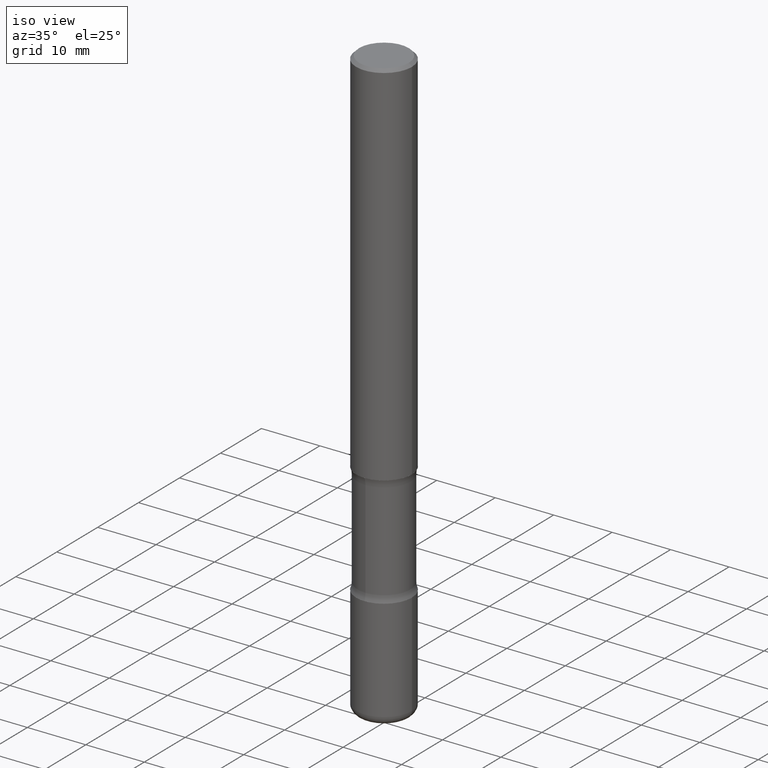
[diagram: clean part render]
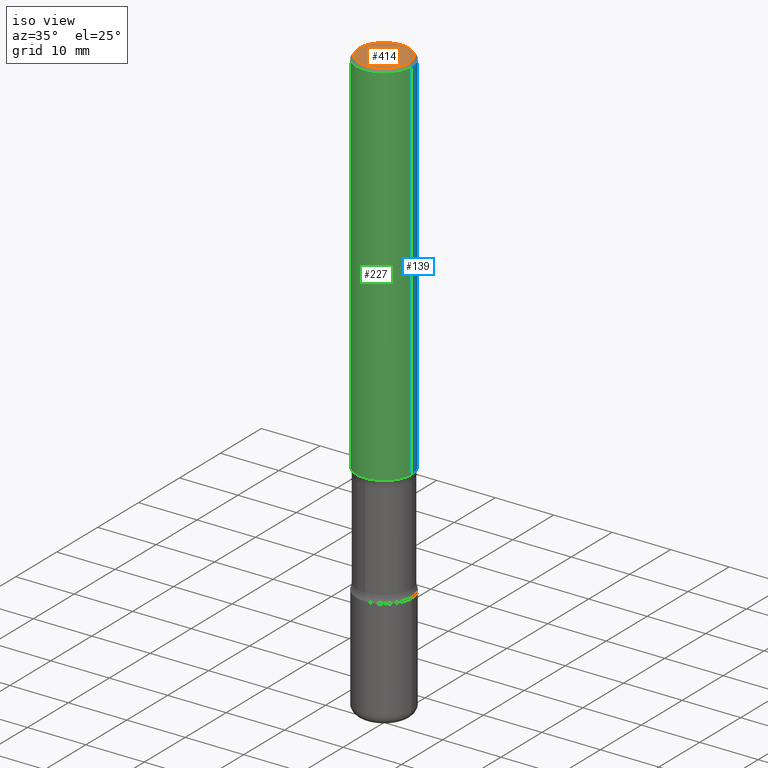
[diagram: same view with three faces highlighted in distinct colors, each labeled with its STEP entity id]
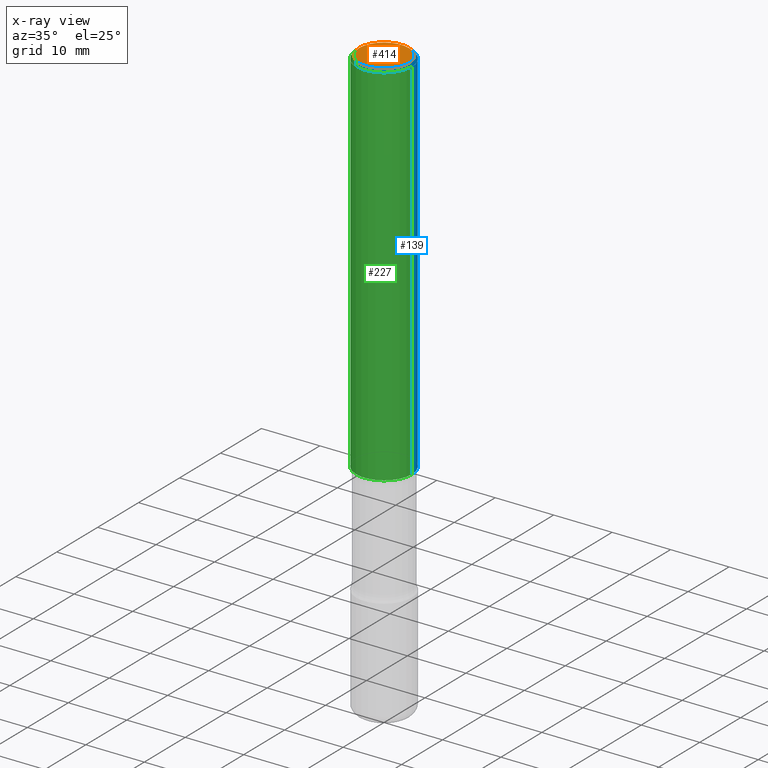
[diagram: x-ray of the same camera — body ghosted, the three highlighted faces saturated]
A machine part, iso view with three faces highlighted in distinct colors.
The next image is the same camera in x-ray (body ghosted, the three faces saturated) — at least one of them is partly hidden behind the body in this view.
Their STEP definitions:

[orange] entity #414 — the highlighted planar face has unit normal (0, -0, -1).
#23 = AXIS2_PLACEMENT_3D ( 'NONE', #41, #170, #127 ) ;
#41 = CARTESIAN_POINT ( 'NONE',  ( 0.000000000000000000, 0.000000000000000000, 0.000000000000000000 ) ) ;
#66 = DIRECTION ( 'NONE',  ( 2.438088387897960049E-29, -3.491481338843145188E-15, -1.000000000000000000 ) ) ;
#127 = DIRECTION ( 'NONE',  ( 1.000000000000000000, -6.982962677686265922E-15, 4.876176775795935793E-29 ) ) ;
#129 = CIRCLE ( 'NONE', #486, 0.1674999999999998990 ) ;
#157 = VERTEX_POINT ( 'NONE', #163 ) ;
#163 = CARTESIAN_POINT ( 'NONE',  ( -0.1674999999999998990, 1.204561061900880061E-15, -8.301862719484106184E-30 ) ) ;
#164 = FACE_OUTER_BOUND ( 'NONE', #508, .T. ) ;
#170 = DIRECTION ( 'NONE',  ( -2.445468806185136597E-29, 3.491481338843145583E-15, 1.000000000000000000 ) ) ;
#230 = ORIENTED_EDGE ( 'NONE', *, *, #539, .T. ) ;
#244 = PLANE ( 'NONE',  #422 ) ;
#253 = DIRECTION ( 'NONE',  ( 1.000000000000000000, -6.982962677686265922E-15, 4.876176775795935793E-29 ) ) ;
#292 = DIRECTION ( 'NONE',  ( -1.000000000000000000, 6.982962677686265922E-15, -4.876176775795935793E-29 ) ) ;
#309 = CIRCLE ( 'NONE', #23, 0.1674999999999998990 ) ;
#316 = VERTEX_POINT ( 'NONE', #366 ) ;
#366 = CARTESIAN_POINT ( 'NONE',  ( 0.1674999999999998990, -1.252653207992877500E-15, 8.469775550109235181E-30 ) ) ;
#403 = ORIENTED_EDGE ( 'NONE', *, *, #425, .T. ) ;
#409 = CARTESIAN_POINT ( 'NONE',  ( 0.000000000000000000, 0.000000000000000000, 0.000000000000000000 ) ) ;
#414 = ADVANCED_FACE ( 'NONE', ( #164 ), #244, .F. ) ;
#422 = AXIS2_PLACEMENT_3D ( 'NONE', #446, #66, #292 ) ;
#425 = EDGE_CURVE ( 'NONE', #157, #316, #129, .T. ) ;
#446 = CARTESIAN_POINT ( 'NONE',  ( 1.169646248512448806E-15, 0.1674999999999998990, -5.848231242562264739E-16 ) ) ;
#486 = AXIS2_PLACEMENT_3D ( 'NONE', #409, #501, #253 ) ;
#501 = DIRECTION ( 'NONE',  ( -2.445468806185136597E-29, 3.491481338843145583E-15, 1.000000000000000000 ) ) ;
#508 = EDGE_LOOP ( 'NONE', ( #403, #230 ) ) ;
#539 = EDGE_CURVE ( 'NONE', #316, #157, #309, .T. ) ;

[blue] entity #139 — the highlighted cylindrical surface (edge-blend (fillet) strip) has radius 4.7625 mm, axis along (-0, 0, 1).
#15 = DIRECTION ( 'NONE',  ( -2.445468806185136597E-29, 3.491481338843145583E-15, 1.000000000000000000 ) ) ;
#18 = EDGE_LOOP ( 'NONE', ( #339, #273, #377, #417 ) ) ;
#40 = CIRCLE ( 'NONE', #470, 0.1875000000000001110 ) ;
#53 = DIRECTION ( 'NONE',  ( 1.000000000000000000, -6.982962677686265922E-15, 0.000000000000000000 ) ) ;
#64 = EDGE_CURVE ( 'NONE', #432, #272, #40, .T. ) ;
#65 = CARTESIAN_POINT ( 'NONE',  ( 0.1874999999999999167, -1.356173001359024677E-15, -0.02000000000000006981 ) ) ;
#93 = DIRECTION ( 'NONE',  ( -2.445468806185136597E-29, 3.491481338843145583E-15, 1.000000000000000000 ) ) ;
#107 = EDGE_CURVE ( 'NONE', #304, #234, #184, .T. ) ;
#117 = CYLINDRICAL_SURFACE ( 'NONE', #194, 0.1875000000000000278 ) ;
#123 = EDGE_CURVE ( 'NONE', #272, #234, #146, .T. ) ;
#135 = DIRECTION ( 'NONE',  ( -2.445468806185136597E-29, 3.491481338843145583E-15, 1.000000000000000000 ) ) ;
#139 = ADVANCED_FACE ( 'NONE', ( #252 ), #117, .T. ) ;
#146 = LINE ( 'NONE', #154, #281 ) ;
#154 = CARTESIAN_POINT ( 'NONE',  ( -0.1875000000000000278, 1.332267629550188046E-15, -9.223003294227947991E-30 ) ) ;
#180 = EDGE_CURVE ( 'NONE', #432, #304, #458, .T. ) ;
#184 = CIRCLE ( 'NONE', #505, 0.1874999999999999167 ) ;
#194 = AXIS2_PLACEMENT_3D ( 'NONE', #206, #15, #415 ) ;
#206 = CARTESIAN_POINT ( 'NONE',  ( 0.000000000000000000, 0.000000000000000000, 0.000000000000000000 ) ) ;
#222 = VECTOR ( 'NONE', #370, 39.37007874015748143 ) ;
#234 = VERTEX_POINT ( 'NONE', #408 ) ;
#235 = CARTESIAN_POINT ( 'NONE',  ( -0.1875000000000000833, -3.066998857392172722E-15, -2.500000000000000000 ) ) ;
#243 = DIRECTION ( 'NONE',  ( -2.445468806185136877E-29, 3.491481338843145188E-15, 1.000000000000000000 ) ) ;
#252 = FACE_OUTER_BOUND ( 'NONE', #18, .T. ) ;
#272 = VERTEX_POINT ( 'NONE', #235 ) ;
#273 = ORIENTED_EDGE ( 'NONE', *, *, #123, .T. ) ;
#281 = VECTOR ( 'NONE', #243, 39.37007874015748143 ) ;
#304 = VERTEX_POINT ( 'NONE', #65 ) ;
#319 = CARTESIAN_POINT ( 'NONE',  ( 4.890937612370289799E-31, -6.982962677686315028E-17, -0.02000000000000006981 ) ) ;
#339 = ORIENTED_EDGE ( 'NONE', *, *, #64, .T. ) ;
#370 = DIRECTION ( 'NONE',  ( -2.445468806185136877E-29, 3.491481338843145188E-15, 1.000000000000000000 ) ) ;
#377 = ORIENTED_EDGE ( 'NONE', *, *, #107, .F. ) ;
#402 = CARTESIAN_POINT ( 'NONE',  ( 0.1875000000000000278, -1.309305502066175008E-15, 9.142831454617381013E-30 ) ) ;
#408 = CARTESIAN_POINT ( 'NONE',  ( -0.1874999999999999167, 1.239475875289311118E-15, -0.02000000000000006981 ) ) ;
#415 = DIRECTION ( 'NONE',  ( 1.000000000000000000, -6.982962677686265922E-15, 4.876176775795935793E-29 ) ) ;
#417 = ORIENTED_EDGE ( 'NONE', *, *, #180, .F. ) ;
#432 = VERTEX_POINT ( 'NONE', #459 ) ;
#435 = DIRECTION ( 'NONE',  ( 1.000000000000000000, -6.982962677686263555E-15, 0.000000000000000000 ) ) ;
#458 = LINE ( 'NONE', #402, #222 ) ;
#459 = CARTESIAN_POINT ( 'NONE',  ( 0.1875000000000001110, -1.003800884917403995E-14, -2.500000000000000000 ) ) ;
#470 = AXIS2_PLACEMENT_3D ( 'NONE', #559, #135, #435 ) ;
#505 = AXIS2_PLACEMENT_3D ( 'NONE', #319, #93, #53 ) ;
#559 = CARTESIAN_POINT ( 'NONE',  ( 6.113672015462842613E-29, -8.728703347107864943E-15, -2.500000000000000000 ) ) ;

[green] entity #227 — the highlighted cylindrical surface (edge-blend (fillet) strip) has radius 4.7625 mm, axis along (-0, 0, 1).
#5 = ORIENTED_EDGE ( 'NONE', *, *, #162, .T. ) ;
#44 = DIRECTION ( 'NONE',  ( 1.000000000000000000, -6.982962677686265922E-15, 0.000000000000000000 ) ) ;
#51 = DIRECTION ( 'NONE',  ( -2.445468806185136597E-29, 3.491481338843145583E-15, 1.000000000000000000 ) ) ;
#65 = CARTESIAN_POINT ( 'NONE',  ( 0.1874999999999999167, -1.356173001359024677E-15, -0.02000000000000006981 ) ) ;
#69 = EDGE_CURVE ( 'NONE', #234, #304, #325, .T. ) ;
#102 = CARTESIAN_POINT ( 'NONE',  ( 4.890937612370289799E-31, -6.982962677686315028E-17, -0.02000000000000006981 ) ) ;
#110 = FACE_OUTER_BOUND ( 'NONE', #520, .T. ) ;
#115 = DIRECTION ( 'NONE',  ( 1.000000000000000000, -6.982962677686265922E-15, 4.876176775795935793E-29 ) ) ;
#123 = EDGE_CURVE ( 'NONE', #272, #234, #146, .T. ) ;
#146 = LINE ( 'NONE', #154, #281 ) ;
#154 = CARTESIAN_POINT ( 'NONE',  ( -0.1875000000000000278, 1.332267629550188046E-15, -9.223003294227947991E-30 ) ) ;
#162 = EDGE_CURVE ( 'NONE', #272, #432, #440, .T. ) ;
#180 = EDGE_CURVE ( 'NONE', #432, #304, #458, .T. ) ;
#222 = VECTOR ( 'NONE', #370, 39.37007874015748143 ) ;
#227 = ADVANCED_FACE ( 'NONE', ( #110 ), #286, .T. ) ;
#234 = VERTEX_POINT ( 'NONE', #408 ) ;
#235 = CARTESIAN_POINT ( 'NONE',  ( -0.1875000000000000833, -3.066998857392172722E-15, -2.500000000000000000 ) ) ;
#243 = DIRECTION ( 'NONE',  ( -2.445468806185136877E-29, 3.491481338843145188E-15, 1.000000000000000000 ) ) ;
#254 = ORIENTED_EDGE ( 'NONE', *, *, #180, .T. ) ;
#271 = AXIS2_PLACEMENT_3D ( 'NONE', #338, #449, #500 ) ;
#272 = VERTEX_POINT ( 'NONE', #235 ) ;
#281 = VECTOR ( 'NONE', #243, 39.37007874015748143 ) ;
#286 = CYLINDRICAL_SURFACE ( 'NONE', #368, 0.1875000000000000278 ) ;
#289 = ORIENTED_EDGE ( 'NONE', *, *, #123, .F. ) ;
#291 = CARTESIAN_POINT ( 'NONE',  ( 0.000000000000000000, 0.000000000000000000, 0.000000000000000000 ) ) ;
#304 = VERTEX_POINT ( 'NONE', #65 ) ;
#325 = CIRCLE ( 'NONE', #391, 0.1874999999999999167 ) ;
#338 = CARTESIAN_POINT ( 'NONE',  ( 6.113672015462842613E-29, -8.728703347107864943E-15, -2.500000000000000000 ) ) ;
#368 = AXIS2_PLACEMENT_3D ( 'NONE', #291, #445, #115 ) ;
#370 = DIRECTION ( 'NONE',  ( -2.445468806185136877E-29, 3.491481338843145188E-15, 1.000000000000000000 ) ) ;
#372 = ORIENTED_EDGE ( 'NONE', *, *, #69, .F. ) ;
#391 = AXIS2_PLACEMENT_3D ( 'NONE', #102, #51, #44 ) ;
#402 = CARTESIAN_POINT ( 'NONE',  ( 0.1875000000000000278, -1.309305502066175008E-15, 9.142831454617381013E-30 ) ) ;
#408 = CARTESIAN_POINT ( 'NONE',  ( -0.1874999999999999167, 1.239475875289311118E-15, -0.02000000000000006981 ) ) ;
#432 = VERTEX_POINT ( 'NONE', #459 ) ;
#440 = CIRCLE ( 'NONE', #271, 0.1875000000000001110 ) ;
#445 = DIRECTION ( 'NONE',  ( -2.445468806185136597E-29, 3.491481338843145583E-15, 1.000000000000000000 ) ) ;
#449 = DIRECTION ( 'NONE',  ( -2.445468806185136597E-29, 3.491481338843145583E-15, 1.000000000000000000 ) ) ;
#458 = LINE ( 'NONE', #402, #222 ) ;
#459 = CARTESIAN_POINT ( 'NONE',  ( 0.1875000000000001110, -1.003800884917403995E-14, -2.500000000000000000 ) ) ;
#500 = DIRECTION ( 'NONE',  ( 1.000000000000000000, -6.982962677686263555E-15, 0.000000000000000000 ) ) ;
#520 = EDGE_LOOP ( 'NONE', ( #289, #5, #254, #372 ) ) ;